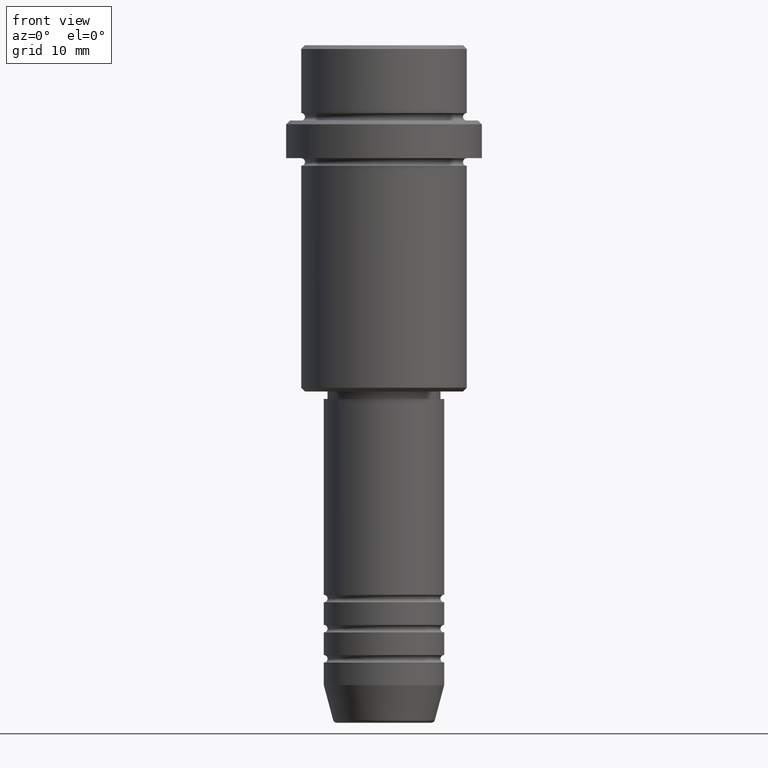
[diagram: clean part render]
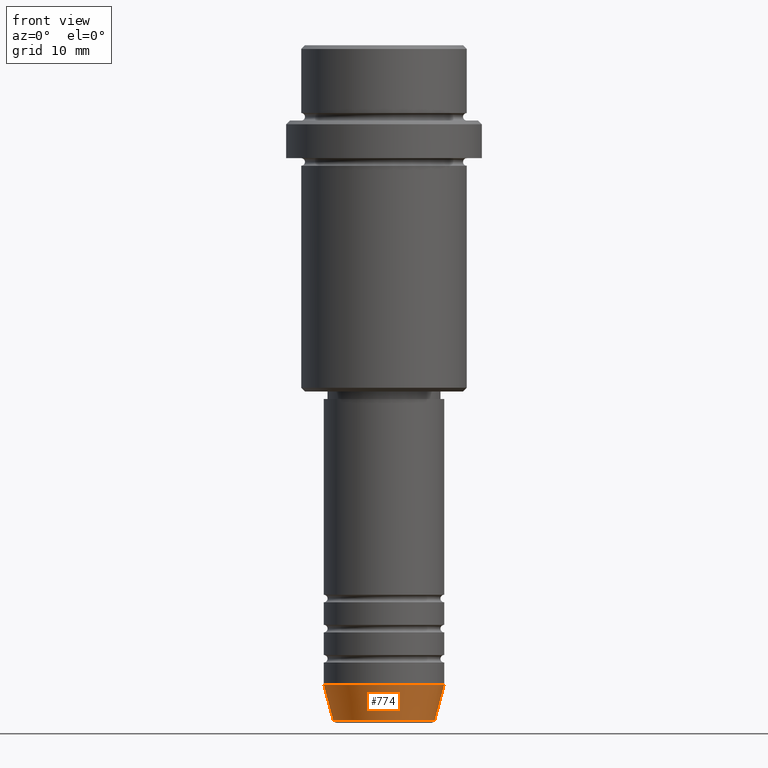
[diagram: same view with one face highlighted and labeled with its STEP entity id]
A machine part, front view. The second image highlights one B-rep face of the part: STEP entity #774.
In plain terms, the highlighted conical surface has half-angle 15 deg.
Its self-contained STEP definition (entity closure, byte-faithful):
#39 = CARTESIAN_POINT ( 'NONE',  ( -8.000000000000000000, 9.797174393178825657E-16, -85.00000000000000000 ) ) ;
#50 = EDGE_CURVE ( 'NONE', #177, #750, #1188, .T. ) ;
#51 = VECTOR ( 'NONE', #789, 1000.000000000000000 ) ;
#82 = EDGE_CURVE ( 'NONE', #107, #177, #899, .T. ) ;
#95 = DIRECTION ( 'NONE',  ( 1.000000000000000000, 0.000000000000000000, 0.000000000000000000 ) ) ;
#107 = VERTEX_POINT ( 'NONE', #1321 ) ;
#111 = CARTESIAN_POINT ( 'NONE',  ( 0.000000000000000000, 0.000000000000000000, -85.00000000000000000 ) ) ;
#113 = DIRECTION ( 'NONE',  ( -0.000000000000000000, -0.000000000000000000, 1.000000000000000000 ) ) ;
#177 = VERTEX_POINT ( 'NONE', #39 ) ;
#257 = ORIENTED_EDGE ( 'NONE', *, *, #601, .T. ) ;
#294 = VERTEX_POINT ( 'NONE', #1090 ) ;
#331 = FACE_OUTER_BOUND ( 'NONE', #1091, .T. ) ;
#367 = AXIS2_PLACEMENT_3D ( 'NONE', #1300, #1306, #95 ) ;
#438 = DIRECTION ( 'NONE',  ( -0.000000000000000000, -0.000000000000000000, 1.000000000000000000 ) ) ;
#443 = CARTESIAN_POINT ( 'NONE',  ( 0.000000000000000000, 0.000000000000000000, -85.00000000000000000 ) ) ;
#453 = AXIS2_PLACEMENT_3D ( 'NONE', #111, #438, #1228 ) ;
#479 = VECTOR ( 'NONE', #1265, 1000.000000000000000 ) ;
#561 = CARTESIAN_POINT ( 'NONE',  ( -8.000000000000000000, 9.797174393178825657E-16, -85.00000000000000000 ) ) ;
#601 = EDGE_CURVE ( 'NONE', #294, #750, #943, .T. ) ;
#647 = EDGE_CURVE ( 'NONE', #107, #294, #1073, .T. ) ;
#750 = VERTEX_POINT ( 'NONE', #1258 ) ;
#758 = CONICAL_SURFACE ( 'NONE', #946, 8.000000000000000000, 0.2617993877991500740 ) ;
#774 = ADVANCED_FACE ( 'NONE', ( #331 ), #758, .T. ) ;
#789 = DIRECTION ( 'NONE',  ( -0.2588190451025213501, 3.169619151431772337E-17, 0.9659258262890680902 ) ) ;
#891 = DIRECTION ( 'NONE',  ( 1.000000000000000000, 0.000000000000000000, 0.000000000000000000 ) ) ;
#899 = LINE ( 'NONE', #561, #51 ) ;
#930 = CARTESIAN_POINT ( 'NONE',  ( 8.000000000000000000, 0.000000000000000000, -85.00000000000000000 ) ) ;
#943 = LINE ( 'NONE', #930, #479 ) ;
#946 = AXIS2_PLACEMENT_3D ( 'NONE', #443, #113, #891 ) ;
#965 = ORIENTED_EDGE ( 'NONE', *, *, #82, .F. ) ;
#1073 = CIRCLE ( 'NONE', #367, 6.759553456999440435 ) ;
#1090 = CARTESIAN_POINT ( 'NONE',  ( 6.759553456999440435, 0.000000000000000000, -89.62940952255125637 ) ) ;
#1091 = EDGE_LOOP ( 'NONE', ( #965, #1136, #257, #1178 ) ) ;
#1136 = ORIENTED_EDGE ( 'NONE', *, *, #647, .T. ) ;
#1178 = ORIENTED_EDGE ( 'NONE', *, *, #50, .F. ) ;
#1188 = CIRCLE ( 'NONE', #453, 8.000000000000000000 ) ;
#1228 = DIRECTION ( 'NONE',  ( 1.000000000000000000, 0.000000000000000000, 0.000000000000000000 ) ) ;
#1258 = CARTESIAN_POINT ( 'NONE',  ( 8.000000000000000000, 0.000000000000000000, -85.00000000000000000 ) ) ;
#1265 = DIRECTION ( 'NONE',  ( 0.2588190451025213501, 0.000000000000000000, 0.9659258262890680902 ) ) ;
#1300 = CARTESIAN_POINT ( 'NONE',  ( 0.000000000000000000, 0.000000000000000000, -89.62940952255125637 ) ) ;
#1306 = DIRECTION ( 'NONE',  ( -0.000000000000000000, -0.000000000000000000, 1.000000000000000000 ) ) ;
#1321 = CARTESIAN_POINT ( 'NONE',  ( -6.759553456999441323, 9.037619948979310157E-16, -89.62940952255125637 ) ) ;